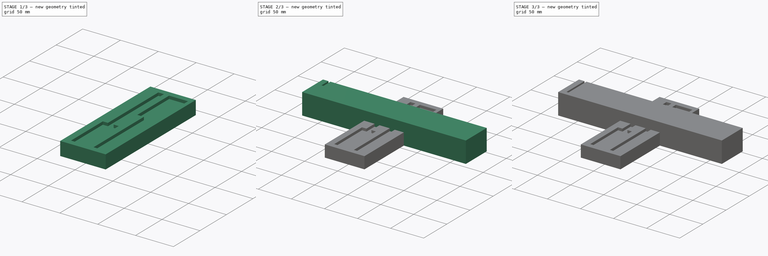
[diagram: build sequence overview — one tinted view per stage of 3, left to right]
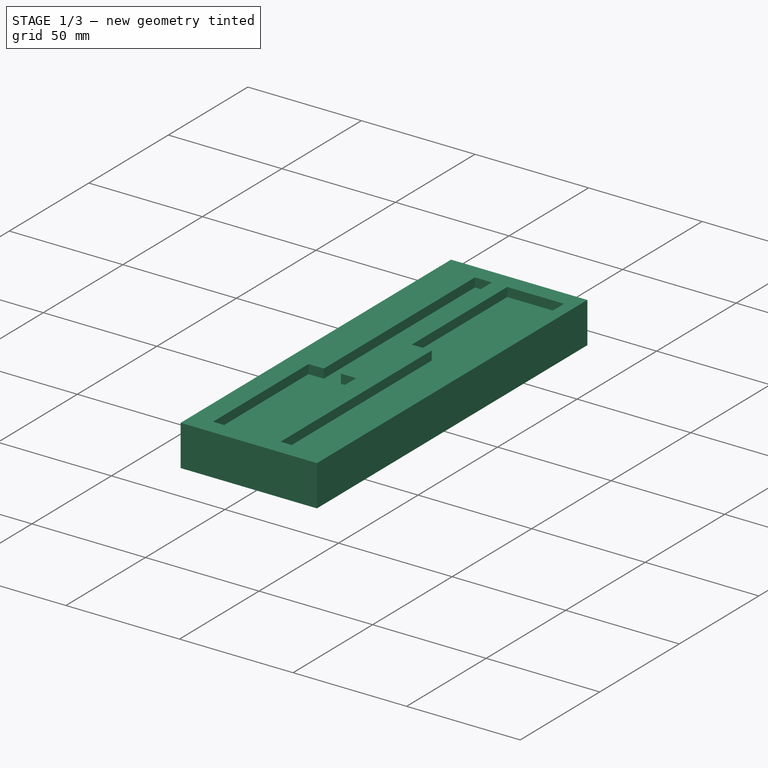
[diagram: stage 1 of 3 — iso view after this stage's code; geometry added in this stage tinted green]
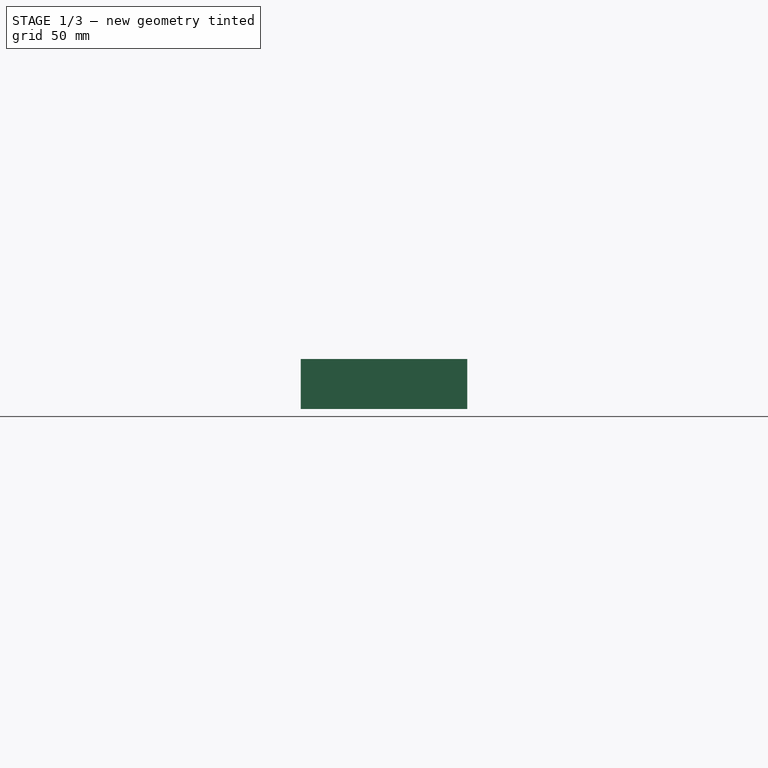
[diagram: stage 1 of 3 — front view after this stage's code; geometry added in this stage tinted green]
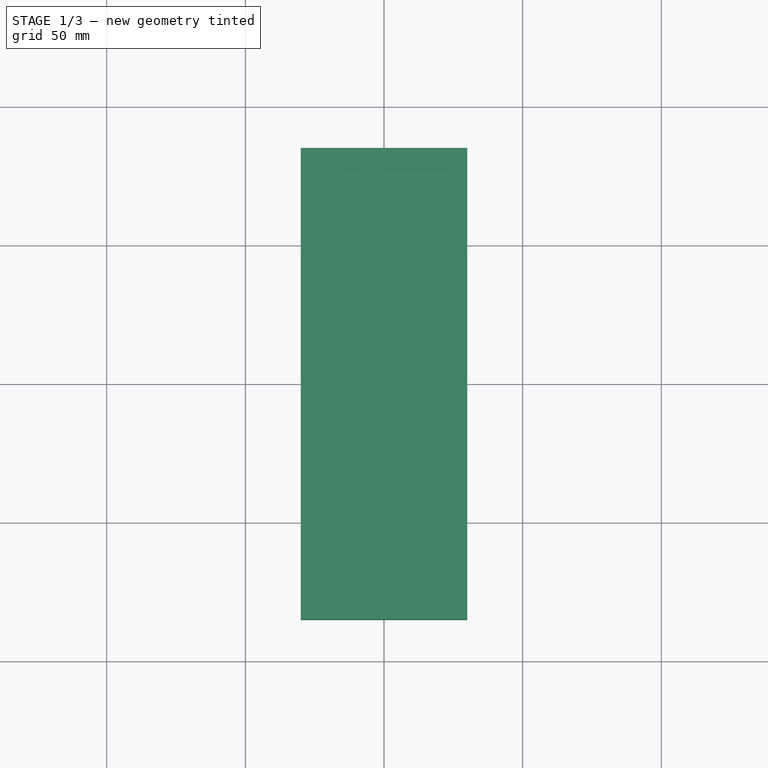
[diagram: stage 1 of 3 — top view after this stage's code; geometry added in this stage tinted green]
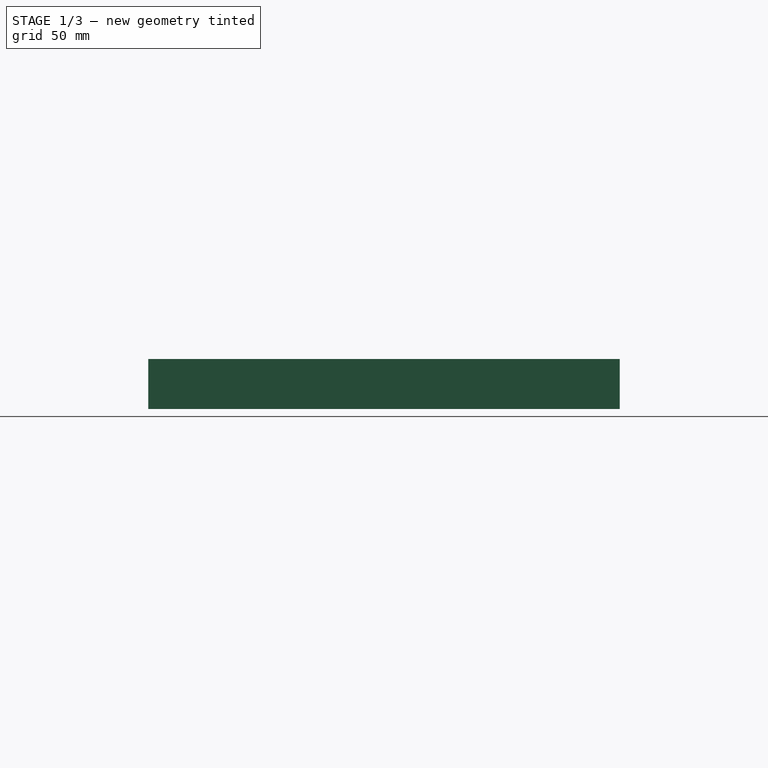
[diagram: stage 1 of 3 — right view after this stage's code; geometry added in this stage tinted green]
FCSTD DOCUMENT  (FreeCAD 0.22R34789 (Git))
Label: wiertla
License: All rights reserved
LicenseURL: http://en.wikipedia.org/wiki/All_rights_reserved
objects: Sketcher::SketchObject×6, PartDesign::Pad×3, PartDesign::Pocket×3, PartDesign::Body×3, PartDesign::LinearPattern×1
note: 22 computed .brp shape members not serialized (recipe doc carries the construction recipe); baked Part::Feature solids carry a one-line shape summary decoded from their .brp

FEATURE [PartDesign::Body] Body001
  Group = -> [Sketch002,Pad001,Sketch003,Pocket001]
  Origin = -> Origin001
  Placement = pos=(0,110,0) rot=(0,0,1;0rad)
  Tip = -> Pocket001
FEATURE [Sketcher::SketchObject] Sketch004
  FullyConstrained = true
  MapMode = 5
  Support = -> [XY_Plane002]
  sketch-geometry (4):
    g0: LineSegment StartX=-30 StartY=85 StartZ=0 EndX=30 EndY=85 EndZ=0
    g1: LineSegment StartX=30 StartY=85 StartZ=0 EndX=30 EndY=-85 EndZ=0
    g2: LineSegment StartX=30 StartY=-85 StartZ=0 EndX=-30 EndY=-85 EndZ=0
    g3: LineSegment StartX=-30 StartY=-85 StartZ=0 EndX=-30 EndY=85 EndZ=0
  constraints (11):
    c: Coincident(g0,g1)
    c: Coincident(g1,g2)
    c: Coincident(g2,g3)
    c: Coincident(g3,g0)
    c: Horizontal(g0)
    c: Horizontal(g2)
    c: Vertical(g1)
    c: Vertical(g3)
    c: DistanceY(g3,g3) = 170
    c: DistanceX(g2,g2) = 60
    c: Symmetric(g0,g2,g-1)
FEATURE [PartDesign::Pad] Pad002
  Direction = (0,0,1)
  Length = 18
  Length2 = 10
  Profile = -> Sketch004
  ReferenceAxis = -> Sketch004 [N_Axis]
  Type = 0
FEATURE [Sketcher::SketchObject] Sketch005
  FullyConstrained = true
  MapMode = 5
  Placement = pos=(0,0,18) rot=(0,0,1;0rad)
  Support = -> [Pad002]
  expr: Constraints[35] = 155 - 60
  expr: Constraints[43] = 155 / 2
  sketch-geometry (16):
    g0: LineSegment StartX=0 StartY=77.5 StartZ=0 EndX=25 EndY=77.5 EndZ=0
    g1: LineSegment StartX=25 StartY=77.5 StartZ=0 EndX=25 EndY=17.5 EndZ=0
    g2: LineSegment StartX=25 StartY=17.5 StartZ=0 EndX=16.25 EndY=17.5 EndZ=0
    g3: LineSegment StartX=0 StartY=17.5 StartZ=0 EndX=0 EndY=77.5 EndZ=0
    g4: LineSegment StartX=16.25 StartY=17.5 StartZ=0 EndX=16.25 EndY=-77.5 EndZ=0
    g5: LineSegment StartX=16.25 StartY=-77.5 StartZ=0 EndX=8.75 EndY=-77.5 EndZ=0
    g6: LineSegment StartX=8.75 StartY=-77.5 StartZ=0 EndX=8.75 EndY=17.5 EndZ=0
    g7: LineSegment StartX=0 StartY=-77.5 StartZ=0 EndX=-21 EndY=-77.5 EndZ=0
    g8: LineSegment StartX=-21 StartY=-77.5 StartZ=0 EndX=-21 EndY=-17.5 EndZ=0
    g9: LineSegment StartX=-21 StartY=-17.5 StartZ=0 EndX=-14.25 EndY=-17.5 EndZ=0
    g10: LineSegment StartX=0 StartY=-17.5 StartZ=0 EndX=0 EndY=-77.5 EndZ=0
    g11: LineSegment StartX=-14.25 StartY=-17.5 StartZ=0 EndX=-14.25 EndY=77.5 EndZ=0
    g12: LineSegment StartX=-14.25 StartY=77.5 StartZ=0 EndX=-6.75 EndY=77.5 EndZ=0
    g13: LineSegment StartX=-6.75 StartY=77.5 StartZ=0 EndX=-6.75 EndY=-17.5 EndZ=0
    g14: LineSegment StartX=-6.75 StartY=-17.5 StartZ=0 EndX=0 EndY=-17.5 EndZ=0
    g15: LineSegment StartX=8.75 StartY=17.5 StartZ=0 EndX=0 EndY=17.5 EndZ=0
  constraints (49):
    c: Coincident(g0,g1)
    c: Coincident(g1,g2)
    c: Coincident(g15,g3)
    c: Coincident(g3,g0)
    c: Horizontal(g0)
    c: Horizontal(g2)
    c: Vertical(g1)
    c: Vertical(g3)
    c: PointOnObject(g0,g-2)
    c: Coincident(g4,g5)
    c: Coincident(g5,g6)
    c: Horizontal(g5)
    c: Vertical(g4)
    c: Vertical(g6)
    c: Coincident(g7,g8)
    c: Coincident(g8,g9)
    c: Coincident(g14,g10)
    c: Coincident(g10,g7)
    c: Horizontal(g7)
    c: Horizontal(g9)
    c: Vertical(g8)
    c: Vertical(g10)
    c: PointOnObject(g7,g-2)
    c: Coincident(g11,g12)
    c: Coincident(g12,g13)
    c: Horizontal(g12)
    c: Vertical(g11)
    c: Vertical(g13)
    c: Equal(g10,g3)
    c: Equal(g6,g13)
    c: Equal(g13,g11)
    c: Equal(g12,g5)
    c: PointOnObject(g9,g11)
    c: DistanceX(g5,g5) = 7.5
    c: DistanceY(g1,g1) = 60
    c: DistanceY(g4,g4) = 95
    c: Equal(g6,g4)
    c: Equal(g1,g3)
    c: Equal(g10,g8)
    c: Equal(g9,g14)
    c: DistanceX(g7,g7) = 21
    c: Coincident(g13,g14)
    c: Perpendicular(g13,g14)
    c: DistanceY(g7,g-1) = 77.5
    c: Coincident(g15,g6)
    c: Coincident(g2,g4)
    c: Equal(g15,g2)
    c: DistanceY(g-1,g0) = 77.5
    c: DistanceX(g0,g0) = 25
FEATURE [PartDesign::Pocket] Pocket002
  BaseFeature = -> Pad002
  Direction = (0,0,-1)
  Length = 4
  Length2 = 5
  Profile = -> Sketch005
  ReferenceAxis = -> Sketch005 [N_Axis]
  Type = 0
FEATURE [PartDesign::Body] Body002
  Group = -> [Sketch004,Pad002,Sketch005,Pocket002]
  Origin = -> Origin002
  Tip = -> Pocket002
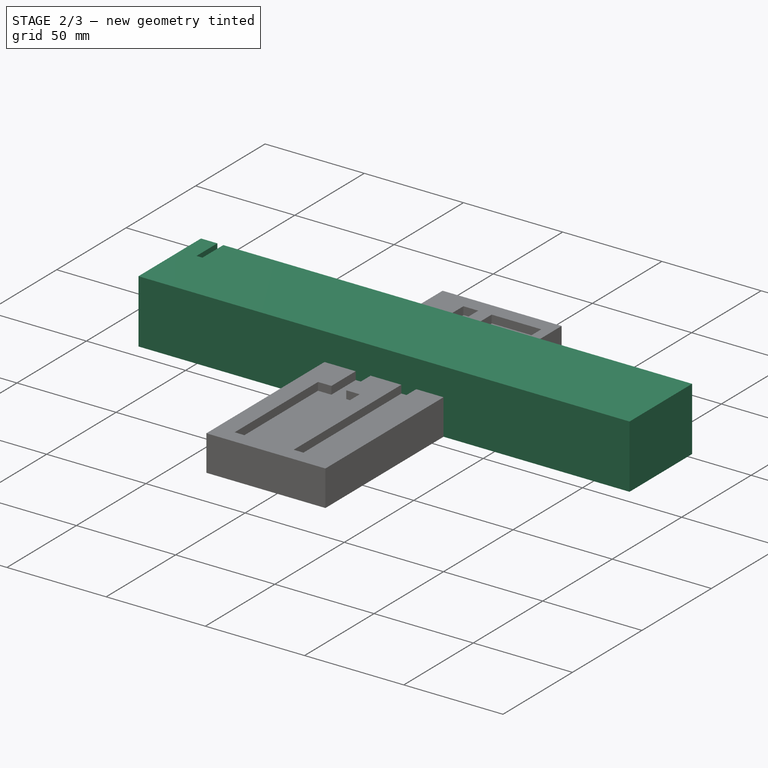
[diagram: stage 2 of 3 — iso view after this stage's code; geometry added in this stage tinted green]
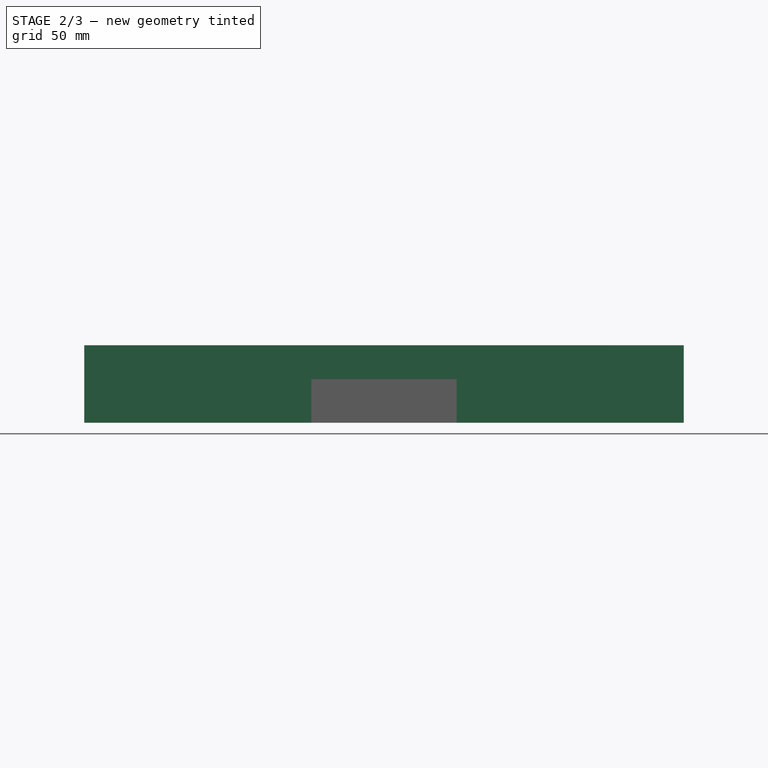
[diagram: stage 2 of 3 — front view after this stage's code; geometry added in this stage tinted green]
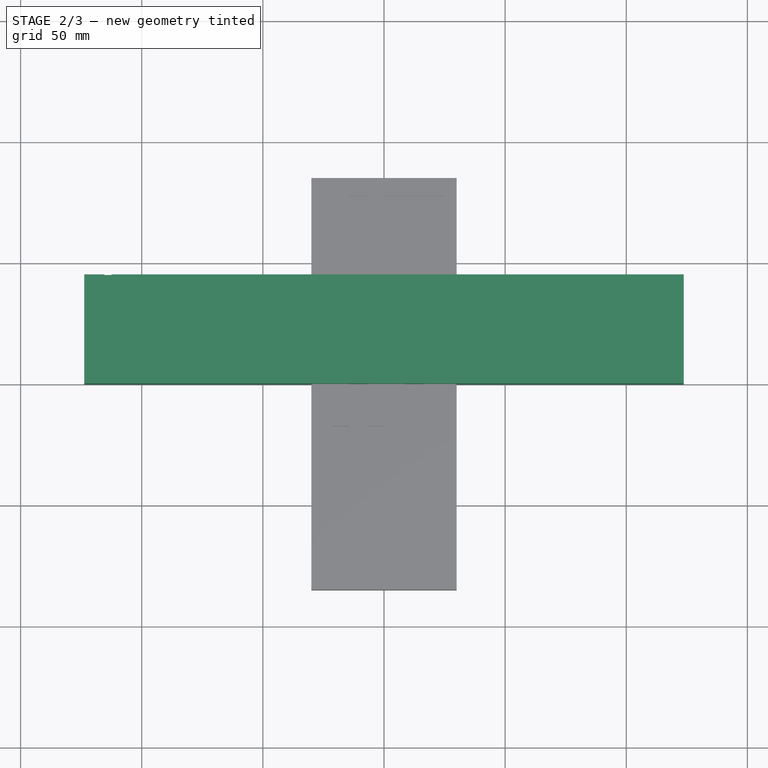
[diagram: stage 2 of 3 — top view after this stage's code; geometry added in this stage tinted green]
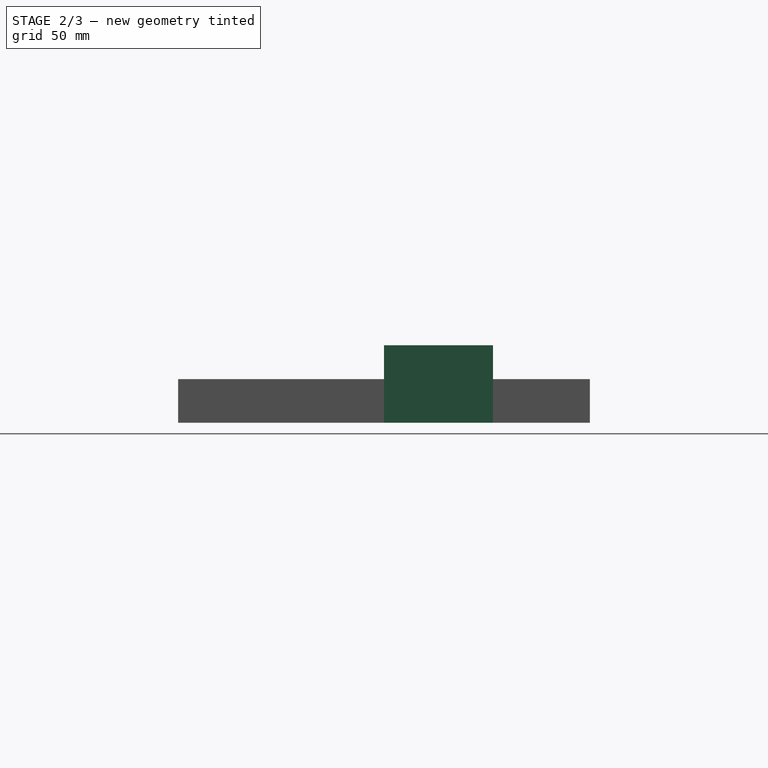
[diagram: stage 2 of 3 — right view after this stage's code; geometry added in this stage tinted green]
FEATURE [Sketcher::SketchObject] Sketch
  FullyConstrained = true
  MapMode = 5
  Support = -> [XY_Plane]
  expr: .Constraints.length = 19 * 12 + 2 * (6 + 7.5 / 2)
  sketch-geometry (4):
    g0: LineSegment StartX=-123.75 StartY=30 StartZ=0 EndX=123.75 EndY=30 EndZ=0
    g1: LineSegment StartX=123.75 StartY=30 StartZ=0 EndX=123.75 EndY=0 EndZ=0
    g2: LineSegment StartX=123.75 StartY=0 StartZ=0 EndX=-123.75 EndY=0 EndZ=0
    g3: LineSegment StartX=-123.75 StartY=0 StartZ=0 EndX=-123.75 EndY=30 EndZ=0
  constraints (11):
    c: Coincident(g0,g1)
    c: Coincident(g1,g2)
    c: Coincident(g2,g3)
    c: Coincident(g3,g0)
    c: Horizontal(g0)
    c: Horizontal(g2)
    c: Vertical(g1)
    c: Vertical(g3)
    c: Symmetric(g2,g1,g-1)
    c: DistanceX(g0,g0) = 247.5  'length'
    c: DistanceY(g3,g3) = 30
FEATURE [PartDesign::Pad] Pad
  Direction = (0,0,1)
  Length = 32
  Length2 = 10
  Profile = -> Sketch
  ReferenceAxis = -> Sketch [N_Axis]
  Type = 0
FEATURE [PartDesign::Body] Body
  Group = -> [Sketch,Pad,Sketch001,Pocket,LinearPattern]
  Origin = -> Origin
  Tip = -> LinearPattern
FEATURE [Sketcher::SketchObject] Sketch002
  FullyConstrained = true
  MapMode = 5
  Support = -> [XY_Plane001]
  expr: Constraints[9] = Sketch.Constraints.length
  sketch-geometry (4):
    g0: LineSegment StartX=-123.75 StartY=45 StartZ=0 EndX=123.75 EndY=45 EndZ=0
    g1: LineSegment StartX=123.75 StartY=45 StartZ=0 EndX=123.75 EndY=0 EndZ=0
    g2: LineSegment StartX=123.75 StartY=0 StartZ=0 EndX=-123.75 EndY=0 EndZ=0
    g3: LineSegment StartX=-123.75 StartY=0 StartZ=0 EndX=-123.75 EndY=45 EndZ=0
  constraints (11):
    c: Coincident(g0,g1)
    c: Coincident(g1,g2)
    c: Coincident(g2,g3)
    c: Coincident(g3,g0)
    c: Horizontal(g0)
    c: Horizontal(g2)
    c: Vertical(g1)
    c: Vertical(g3)
    c: Symmetric(g2,g1,g-1)
    c: DistanceX(g0,g0) = 247.5
    c: DistanceY(g3,g3) = 45
FEATURE [PartDesign::Pad] Pad001
  Direction = (0,0,1)
  Length = 32
  Length2 = 10
  Profile = -> Sketch002
  ReferenceAxis = -> Sketch002 [N_Axis]
  Type = 0
FEATURE [Sketcher::SketchObject] Sketch003
  ExternalGeometry = -> [Pad001]
  FullyConstrained = true
  MapMode = 5
  Placement = pos=(0,0,32) rot=(0,0,1;0rad)
  Support = -> [Pad001]
  expr: Constraints[11] = 6 + 7.5 / 2 - 3 / 2
  sketch-geometry (4):
    g0: LineSegment StartX=-115.5 StartY=45 StartZ=0 EndX=-112.5 EndY=45 EndZ=0
    g1: LineSegment StartX=-112.5 StartY=45 StartZ=0 EndX=-112.5 EndY=0 EndZ=0
    g2: LineSegment StartX=-112.5 StartY=0 StartZ=0 EndX=-115.5 EndY=0 EndZ=0
    g3: LineSegment StartX=-115.5 StartY=0 StartZ=0 EndX=-115.5 EndY=45 EndZ=0
  constraints (12):
    c: Coincident(g0,g1)
    c: Coincident(g1,g2)
    c: Coincident(g2,g3)
    c: Coincident(g3,g0)
    c: Horizontal(g0)
    c: Horizontal(g2)
    c: Vertical(g1)
    c: Vertical(g3)
    c: Equal(g-3,g3)
    c: DistanceY(g2,g-3) = 0
    c: DistanceX(g0,g0) = 3
    c: DistanceX(g-3,g2) = 8.25
FEATURE [PartDesign::Pocket] Pocket001
  BaseFeature = -> Pad001
  Direction = (0,0,-1)
  Length = 16.5
  Length2 = 5
  Profile = -> Sketch003
  ReferenceAxis = -> Sketch003 [N_Axis]
  Type = 0
  expr: Length = 25 / 2 + 4
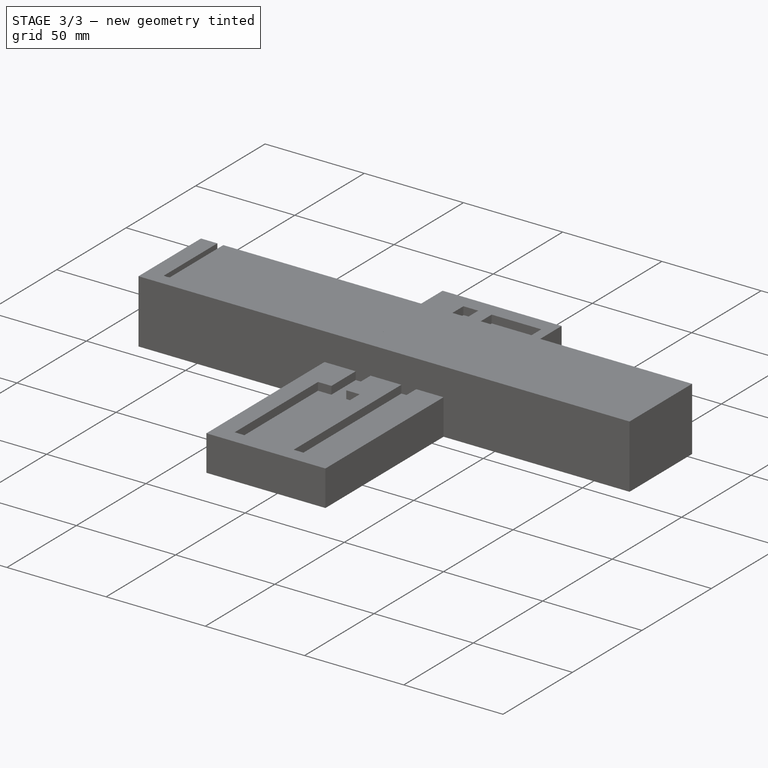
[diagram: stage 3 of 3 — iso view after this stage's code; geometry added in this stage tinted green]
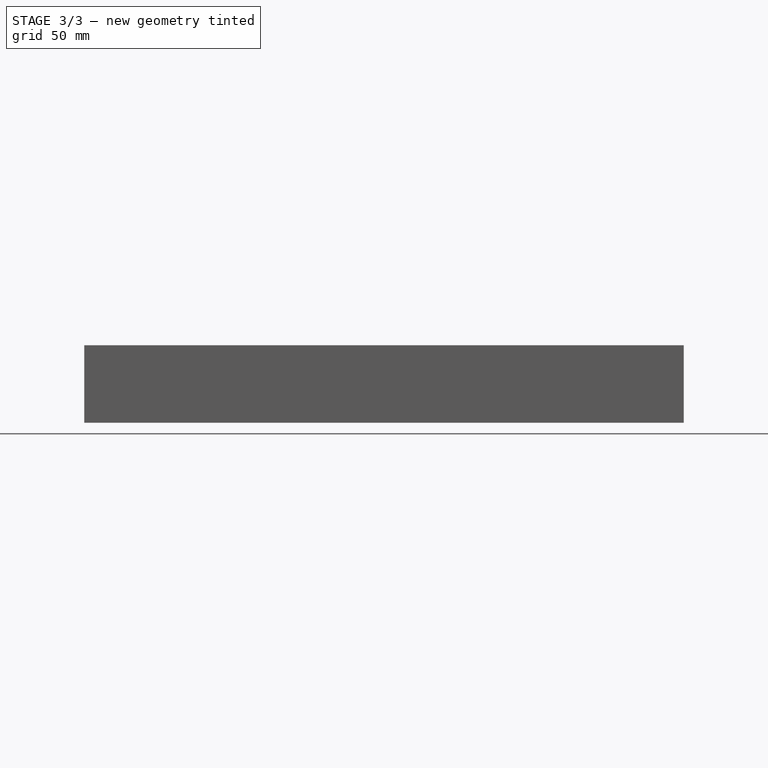
[diagram: stage 3 of 3 — front view after this stage's code; geometry added in this stage tinted green]
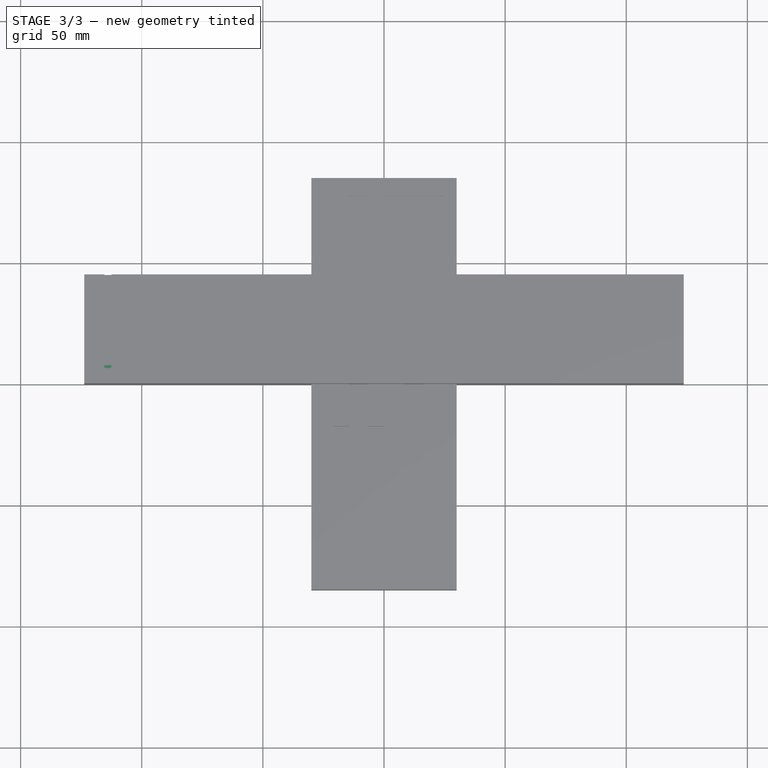
[diagram: stage 3 of 3 — top view after this stage's code; geometry added in this stage tinted green]
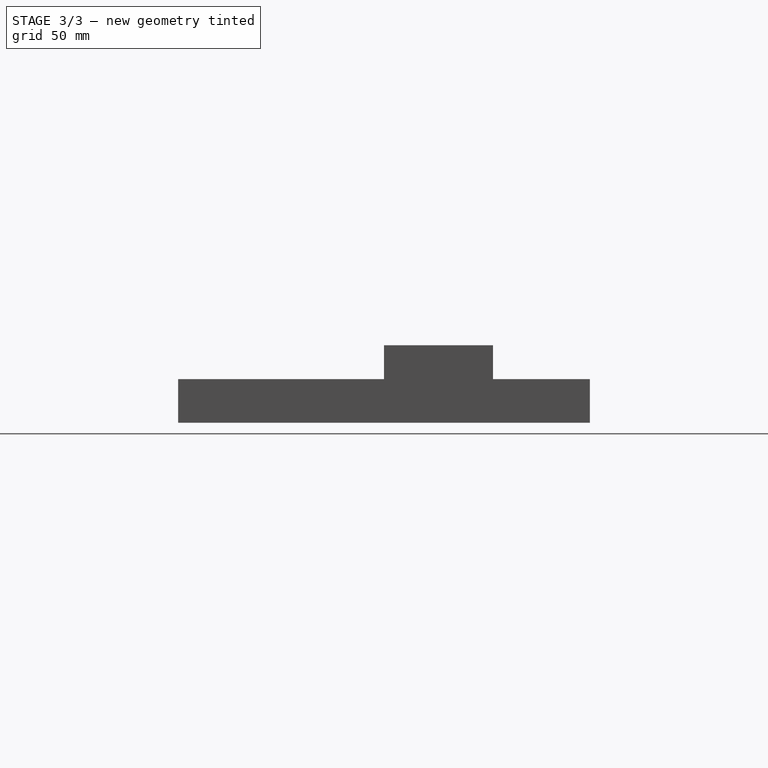
[diagram: stage 3 of 3 — right view after this stage's code; geometry added in this stage tinted green]
FEATURE [Sketcher::SketchObject] Sketch001
  ExternalGeometry = -> [Pad]
  FullyConstrained = true
  MapMode = 5
  Placement = pos=(0,0,32) rot=(0,0,1;0rad)
  Support = -> [Pad]
  expr: Constraints[8] = 6 + 7.5 / 2
  sketch-geometry (4):
    g0: ArcOfCircle CenterX=-114 CenterY=45 CenterZ=0 NormalX=0 NormalY=0 NormalZ=1 AngleXU=0 Radius=3.75 StartAngle=-1.27e-13 EndAngle=3.14159
    g1: ArcOfCircle CenterX=-114 CenterY=10 CenterZ=0 NormalX=0 NormalY=0 NormalZ=1 AngleXU=0 Radius=3.75 StartAngle=3.14159 EndAngle=6.28319
    g2: LineSegment StartX=-117.75 StartY=45 StartZ=0 EndX=-117.75 EndY=10 EndZ=0
    g3: LineSegment StartX=-110.25 StartY=10 StartZ=0 EndX=-110.25 EndY=45 EndZ=0
  constraints (10):
    c: Tangent(g0,g2) = -1.5708
    c: Tangent(g2,g1) = -1.5708
    c: Tangent(g1,g3) = -1.5708
    c: Tangent(g3,g0) = -1.5708
    c: Equal(g0,g1)
    c: Vertical(g2)
    c: Diameter(g1) = 7.5
    c: DistanceY(g1,g-3) = 20
    c: DistanceX(g-3,g1) = 9.75
    c: DistanceY(g1,g0) = 35
FEATURE [PartDesign::Pocket] Pocket
  BaseFeature = -> Pad
  Direction = (0,0,-1)
  Length = 4
  Length2 = 5
  Profile = -> Sketch001
  ReferenceAxis = -> Sketch001 [N_Axis]
  Type = 0
  expr: Length = 4
FEATURE [PartDesign::LinearPattern] LinearPattern
  BaseFeature = -> Pocket
  Direction = -> Sketch001 [H_Axis]
  Length = 12
  Mode = 1
  Occurrences = 20
  Offset = 12
  Originals = -> [Pocket]
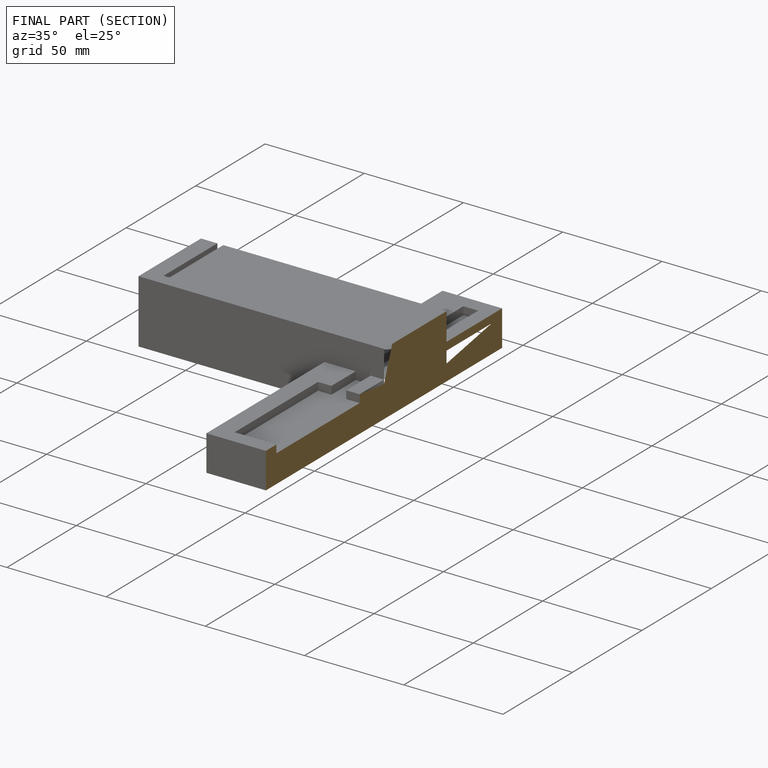
[diagram: finished part — half-section view (interior)]
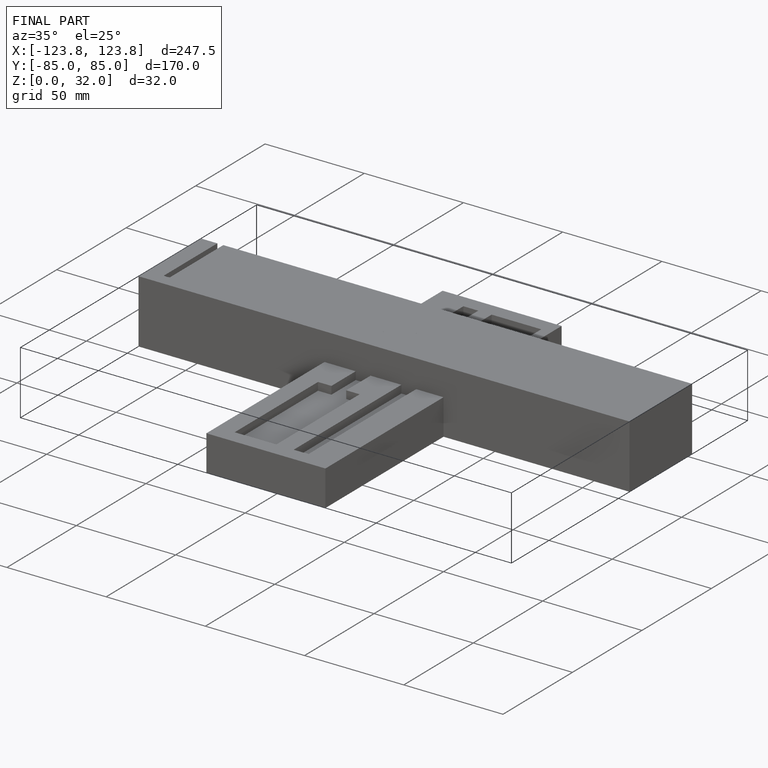
[diagram: finished part — iso view with bounding-box wireframe]
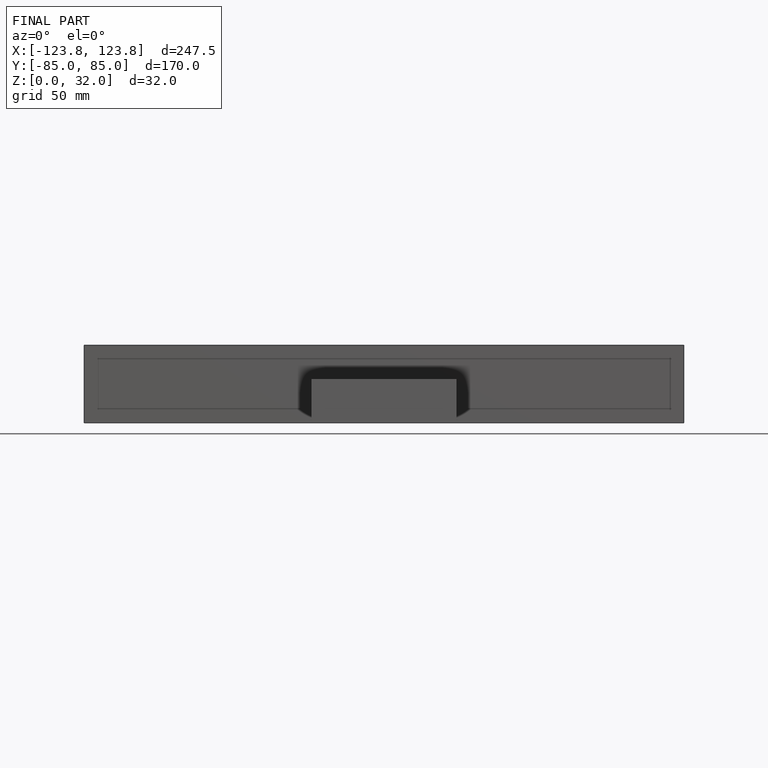
[diagram: finished part — front view with bounding-box wireframe]
